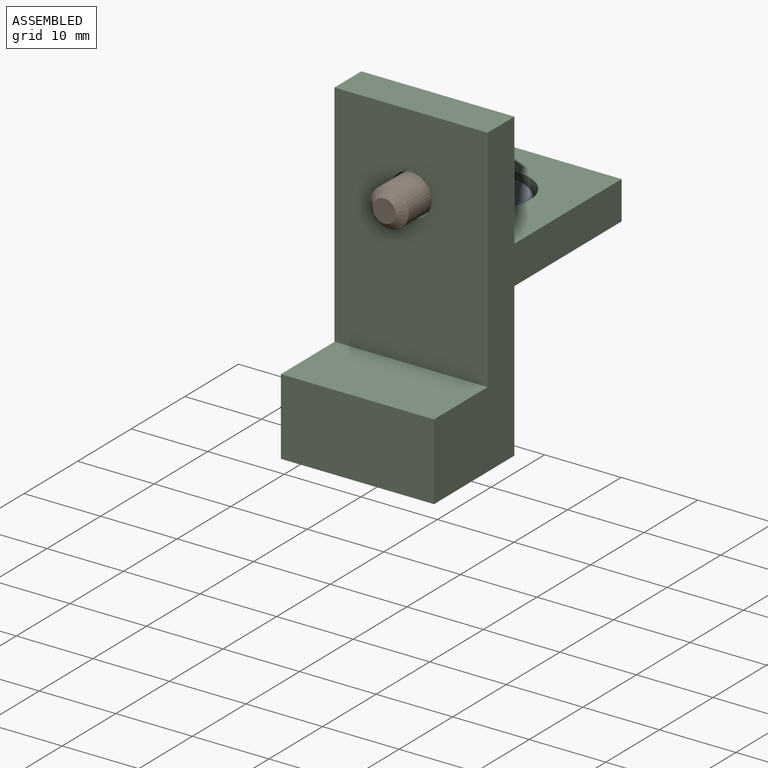
[diagram: assembled view]
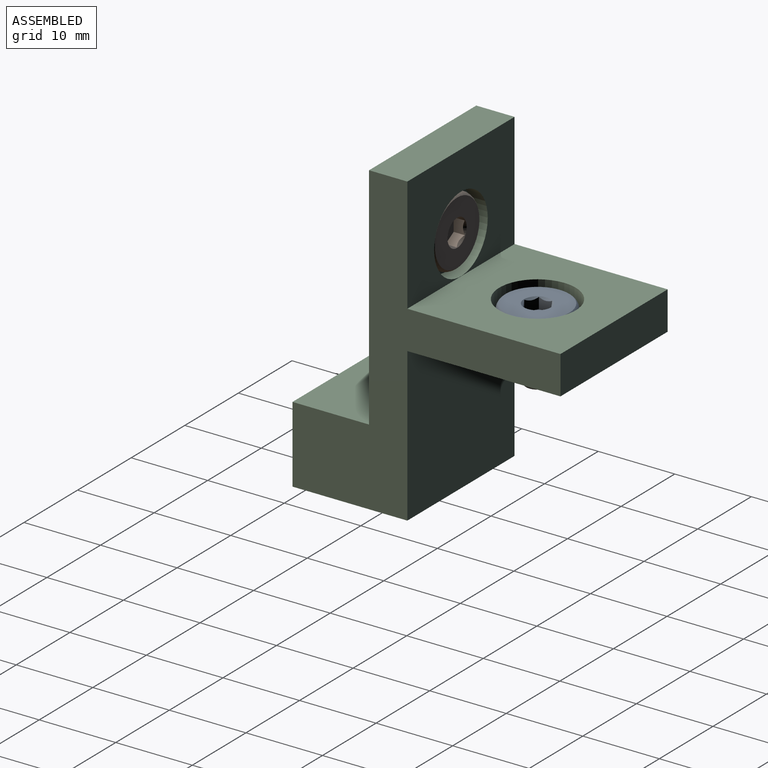
[diagram: assembled view, second angle]
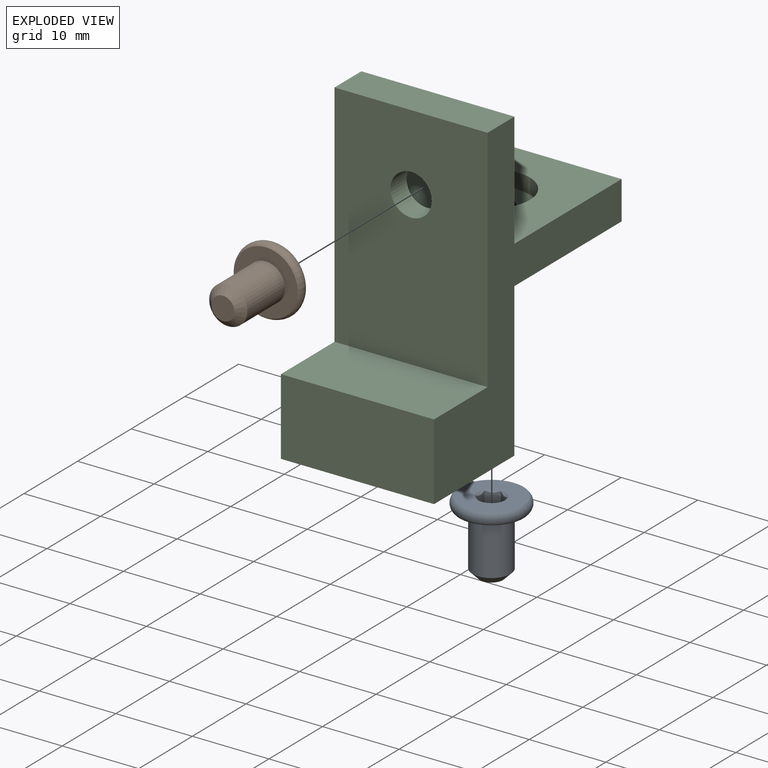
[diagram: exploded view]
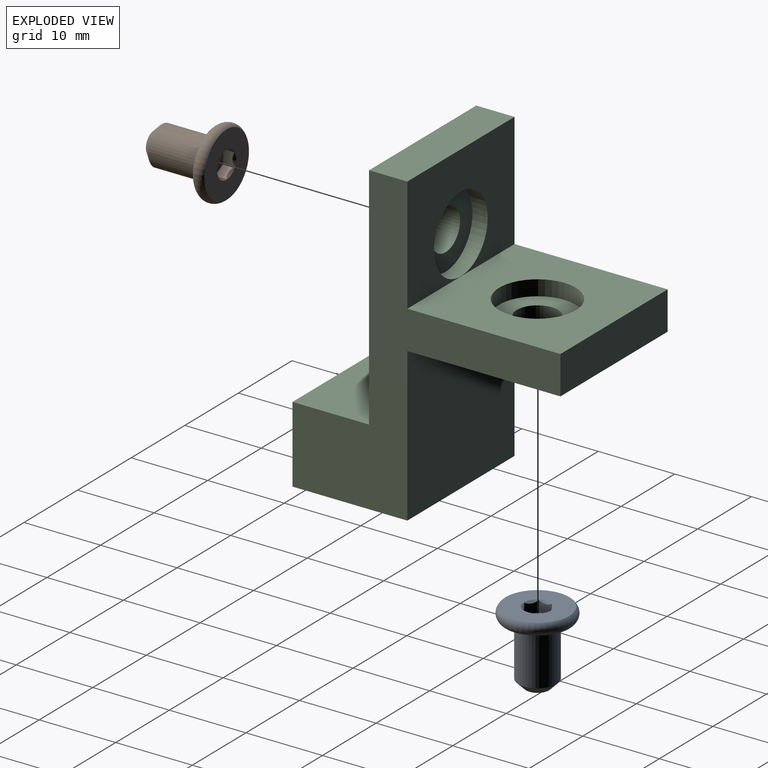
[diagram: exploded view, second angle]
ASSEMBLY  parts=3 mates=2
PART A: 14 faces, bbox 9.8x9.7x9.7 mm
  f0: plane 1.5x1.45mm, normal (0,-0.87,0.5), area 2.2mm2, adj f1,f5,f9,f12
  f1: plane 1.73x1.45mm, normal (0,0,1), area 2.2mm2, adj f0,f2,f9,f12
  f2: plane 1.5x1.45mm, normal (0,0.87,0.5), area 2.2mm2, adj f1,f3,f9,f12
  f3: plane 1.5x1.45mm, normal (0,0.87,-0.5), area 2.2mm2, adj f2,f4,f9,f12
  f4: plane 1.73x1.45mm, normal (0,0,-1), area 2.2mm2, adj f3,f5,f9,f12
  f5: plane 1.5x1.45mm, normal (0,-0.87,-0.5), area 2.2mm2, adj f0,f4,f9,f12
  f6: plane 8.32x8.32mm, normal (-1,0,0), area 44.4mm2, adj f7,f9
  f7: torus R=3.5mm, axis (-1,0,0), area 46.7mm2, adj f6,f8
  f8: plane 8.32x8.32mm, normal (1,0,0), area 34.8mm2, adj f7,f11
  f9: cone r=1.78mm half-angle=45deg, axis (-1,0,0), area 3.1mm2, adj f0,f1,f2,f3,f4,f5,f6
  f10: plane 3x3mm, normal (1,0,0), area 7.1mm2, adj f13
  f11: cylinder r=2.5mm len=7mm, axis (-1,0,0), area 110mm2, adj f8,f13
  f12: plane 3.46x3mm, normal (-1,0,0), area 7.8mm2, adj f0,f1,f2,f3,f4,f5
  f13: cone r=1.5mm half-angle=45deg, axis (-1,0,0), area 17.8mm2, adj f10,f11
PART B: same geometry as A
PART C: 18 faces, bbox 20x35x40 mm
  f0: cylinder r=2.7mm len=5.4mm, axis (0,0,1), area 50.9mm2, adj f14,f16
  f1: plane 20x15.01mm, normal (0,1,0), area 221.7mm2, adj f3,f4,f5,f9,f13
  f2: cylinder r=2.7mm len=5.4mm, axis (0,-1,0), area 50.9mm2, adj f8,f10
  f3: plane 40.03x35mm, normal (-1,0,0), area 400.1mm2, adj f1,f4,f6,f7,f8,f11,f12,f13
  f4: plane 20x5mm, normal (0,0,1), area 100mm2, adj f1,f3,f5,f8
  f5: plane 40.03x35mm, normal (1,0,0), area 400.1mm2, adj f1,f4,f6,f7,f8,f11,f12,f13
  f6: plane 20x15mm, normal (0,0,-1), area 300mm2, adj f3,f5,f7,f12
  f7: plane 20.01x20mm, normal (0,1,0), area 400.3mm2, adj f3,f5,f6,f14
  f8: plane 30.03x20mm, normal (0,-1,0), area 577.6mm2, adj f2,f3,f4,f5,f11
  f9: cylinder r=5mm len=10mm, axis (0,1,0), area 62.8mm2, adj f1,f10
  f10: plane 10x10mm, normal (0,1,0), area 55.6mm2, adj f2,f9
  f11: plane 20x10mm, normal (0,0,1), area 200mm2, adj f3,f5,f8,f12
  f12: plane 20x10mm, normal (0,-1,0), area 200mm2, adj f3,f5,f6,f11
  f13: plane 20x20mm, normal (0,0,1), area 321.5mm2, adj f1,f3,f5,f15,f17
  f14: plane 20x20mm, normal (0,0,-1), area 377.1mm2, adj f0,f3,f5,f7,f15
  f15: plane 20x5mm, normal (0,1,0), area 100mm2, adj f3,f5,f13,f14
  f16: plane 10x10mm, normal (0,0,1), area 55.6mm2, adj f0,f17
  f17: cylinder r=5mm len=10mm, axis (0,0,1), area 62.8mm2, adj f13,f16
PLACE A rot(axis=(0.71,0,-0.71),180deg) t=(224.1,329.96,-41.99)mm
PLACE B rot(axis=(0.58,-0.58,-0.58),120deg) t=(224.1,302.96,-19.97)mm
PLACE C at identity
MATE fastened B.f11 <-> C.f2  axis (0,-1,0) through (224.1,317.96,-19.97)mm
MATE fastened A.f11 <-> C.f0  axis (0,0,-1) through (224.1,329.96,-26.99)mm
